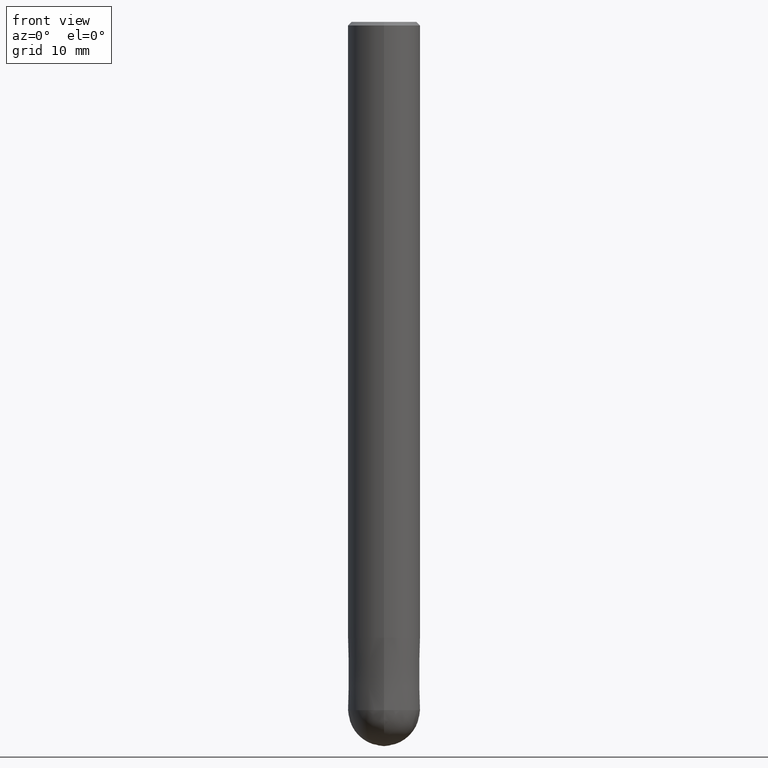
[diagram: clean part render]
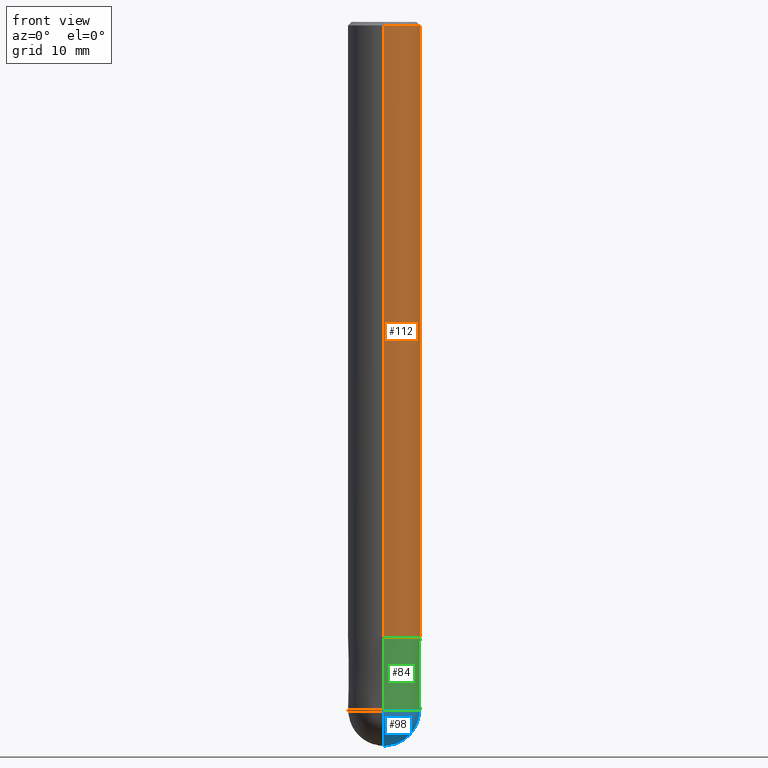
[diagram: same view with three faces highlighted in distinct colors, each labeled with its STEP entity id]
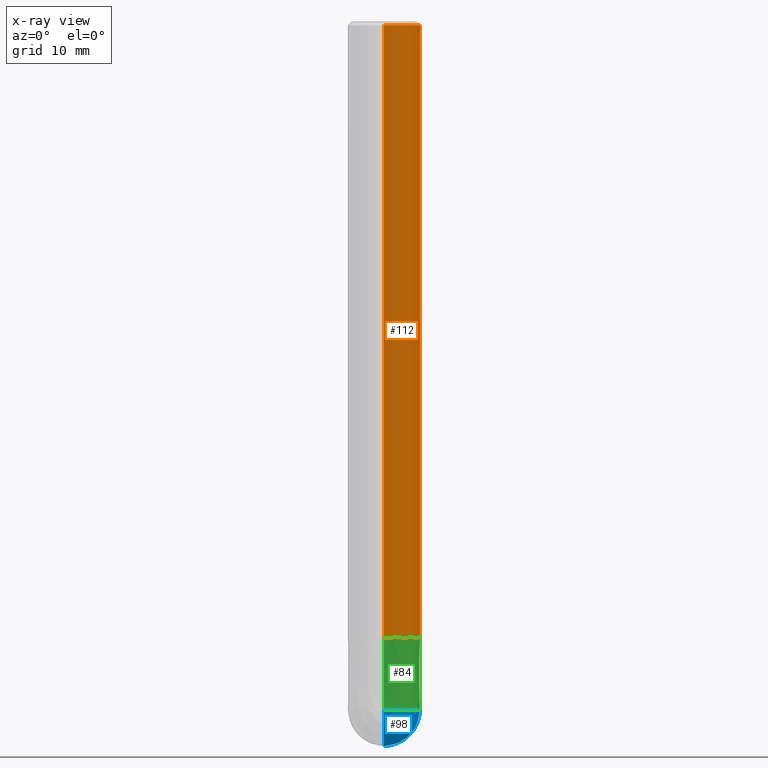
[diagram: x-ray of the same camera — body ghosted, the three highlighted faces saturated]
A machine part, front view with three faces highlighted in distinct colors.
The next image is the same camera in x-ray (body ghosted, the three faces saturated) — at least one of them is partly hidden behind the body in this view.
Their STEP definitions:

[orange] entity #112 — the highlighted cylindrical surface (edge-blend (fillet) strip) has radius 5 mm, axis along (-0, -0, 1).
#66=VERTEX_POINT('',#159);
#90=EDGE_CURVE('',#66,#134,#187,.T.);
#100=EDGE_CURVE('',#106,#66,#200,.T.);
#106=VERTEX_POINT('',#207);
#112=ADVANCED_FACE('',(#214),#215,.T.);
#118=VERTEX_POINT('',#221);
#120=EDGE_CURVE('',#118,#134,#223,.T.);
#124=EDGE_CURVE('',#118,#106,#227,.T.);
#134=VERTEX_POINT('',#237);
#159=CARTESIAN_POINT('',(6.12303176911189E-016,-5.0,-85.0));
#187=LINE('',#290,#291);
#200=CIRCLE('',#306,5.0);
#207=CARTESIAN_POINT('',(0.0,5.0,-85.0));
#214=FACE_OUTER_BOUND('',#321,.T.);
#215=CYLINDRICAL_SURFACE('',#322,5.0);
#221=CARTESIAN_POINT('',(0.0,5.0,-0.5));
#223=CIRCLE('',#333,5.0);
#227=LINE('',#339,#340);
#237=CARTESIAN_POINT('',(6.12303176911189E-016,-5.0,-0.5));
#290=CARTESIAN_POINT('',(6.12303176911189E-016,-5.0,-42.75));
#291=VECTOR('',#403,1.0);
#306=AXIS2_PLACEMENT_3D('',#427,#428,#429);
#321=EDGE_LOOP('',(#450,#451,#452,#453));
#322=AXIS2_PLACEMENT_3D('',#454,#455,#456);
#333=AXIS2_PLACEMENT_3D('',#458,#459,#460);
#339=CARTESIAN_POINT('',(-6.12303176911189E-016,5.0,-42.75));
#340=VECTOR('',#464,1.0);
#403=DIRECTION('',(-0.0,-0.0,1.0));
#427=CARTESIAN_POINT('',(0.0,0.0,-85.0));
#428=DIRECTION('',(0.0,0.0,-1.0));
#429=DIRECTION('',(0.0,1.0,0.0));
#450=ORIENTED_EDGE('',*,*,#124,.F.);
#451=ORIENTED_EDGE('',*,*,#120,.T.);
#452=ORIENTED_EDGE('',*,*,#90,.F.);
#453=ORIENTED_EDGE('',*,*,#100,.F.);
#454=CARTESIAN_POINT('',(0.0,0.0,-42.75));
#455=DIRECTION('',(-0.0,-0.0,1.0));
#456=DIRECTION('',(0.0,1.0,0.0));
#458=CARTESIAN_POINT('',(0.0,0.0,-0.5));
#459=DIRECTION('',(0.0,0.0,-1.0));
#460=DIRECTION('',(0.0,1.0,0.0));
#464=DIRECTION('',(0.0,0.0,-1.0));

[blue] entity #98 — the highlighted spherical surface has radius 5 mm.
#62=EDGE_CURVE('',#110,#116,#154,.T.);
#98=ADVANCED_FACE('',(#197),#198,.T.);
#110=VERTEX_POINT('',#212);
#116=VERTEX_POINT('',#219);
#122=EDGE_CURVE('',#116,#110,#225,.T.);
#154=CIRCLE('',#248,4.99999999999999);
#197=FACE_OUTER_BOUND('',#302,.T.);
#198=SPHERICAL_SURFACE('',#303,4.99999999999999);
#212=CARTESIAN_POINT('',(6.12303176911188E-016,-5.0,-95.0));
#219=CARTESIAN_POINT('',(0.0,5.0,-95.0));
#225=CIRCLE('',#336,5.0);
#248=AXIS2_PLACEMENT_3D('',#356,#357,#358);
#302=EDGE_LOOP('',(#422,#423));
#303=AXIS2_PLACEMENT_3D('',#424,#425,#426);
#336=AXIS2_PLACEMENT_3D('',#461,#462,#463);
#356=CARTESIAN_POINT('',(0.0,0.0,-95.0));
#357=DIRECTION('',(1.0,0.0,1.22460635382238E-016));
#358=DIRECTION('',(-1.22460635382238E-016,0.0,1.0));
#422=ORIENTED_EDGE('',*,*,#62,.T.);
#423=ORIENTED_EDGE('',*,*,#122,.T.);
#424=CARTESIAN_POINT('',(0.0,0.0,-95.0));
#425=DIRECTION('',(0.0,1.0,0.0));
#426=DIRECTION('',(0.0,0.0,-1.0));
#461=CARTESIAN_POINT('',(0.0,0.0,-95.0));
#462=DIRECTION('',(0.0,0.0,-1.0));
#463=DIRECTION('',(0.0,1.0,0.0));

[green] entity #84 — the highlighted conical surface has half-angle 0.001 deg.
#72=VERTEX_POINT('',#167);
#74=EDGE_CURVE('',#136,#116,#169,.T.);
#84=ADVANCED_FACE('',(#179),#180,.T.);
#110=VERTEX_POINT('',#212);
#114=EDGE_CURVE('',#110,#72,#217,.T.);
#116=VERTEX_POINT('',#219);
#122=EDGE_CURVE('',#116,#110,#225,.T.);
#126=EDGE_CURVE('',#136,#72,#229,.T.);
#136=VERTEX_POINT('',#239);
#167=CARTESIAN_POINT('',(6.1229093084765E-016,-4.9999,-85.0));
#169=LINE('',#265,#266);
#179=FACE_OUTER_BOUND('',#279,.T.);
#180=CONICAL_SURFACE('',#280,4.99995,9.99999999973218E-006);
#212=CARTESIAN_POINT('',(6.12303176911188E-016,-5.0,-95.0));
#217=LINE('',#325,#326);
#219=CARTESIAN_POINT('',(0.0,5.0,-95.0));
#225=CIRCLE('',#336,5.0);
#229=CIRCLE('',#343,4.9999);
#239=CARTESIAN_POINT('',(0.0,4.9999,-85.0));
#265=CARTESIAN_POINT('',(-6.12297053879419E-016,4.99995,-90.0));
#266=VECTOR('',#376,1.0);
#279=EDGE_LOOP('',(#387,#388,#389,#390));
#280=AXIS2_PLACEMENT_3D('',#391,#392,#393);
#325=CARTESIAN_POINT('',(6.12297053879419E-016,-4.99995,-90.0));
#326=VECTOR('',#457,1.0);
#336=AXIS2_PLACEMENT_3D('',#461,#462,#463);
#343=AXIS2_PLACEMENT_3D('',#465,#466,#467);
#376=DIRECTION('',(-1.22460635376917E-021,9.99999999956551E-006,-0.99999999995));
#387=ORIENTED_EDGE('',*,*,#74,.F.);
#388=ORIENTED_EDGE('',*,*,#126,.T.);
#389=ORIENTED_EDGE('',*,*,#114,.F.);
#390=ORIENTED_EDGE('',*,*,#122,.F.);
#391=CARTESIAN_POINT('',(0.0,0.0,-90.0));
#392=DIRECTION('',(0.0,-0.0,-1.0));
#393=DIRECTION('',(0.0,1.0,0.0));
#457=DIRECTION('',(-1.22460635376917E-021,9.99999999956551E-006,0.99999999995));
#461=CARTESIAN_POINT('',(0.0,0.0,-95.0));
#462=DIRECTION('',(0.0,0.0,-1.0));
#463=DIRECTION('',(0.0,1.0,0.0));
#465=CARTESIAN_POINT('',(0.0,0.0,-85.0));
#466=DIRECTION('',(0.0,0.0,-1.0));
#467=DIRECTION('',(0.0,1.0,0.0));